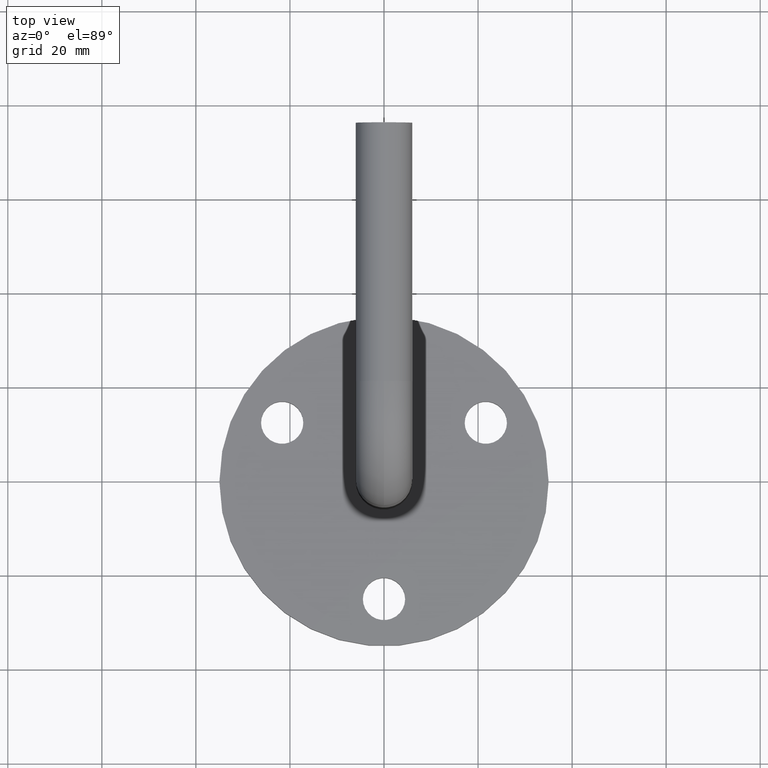
[diagram: clean part render]
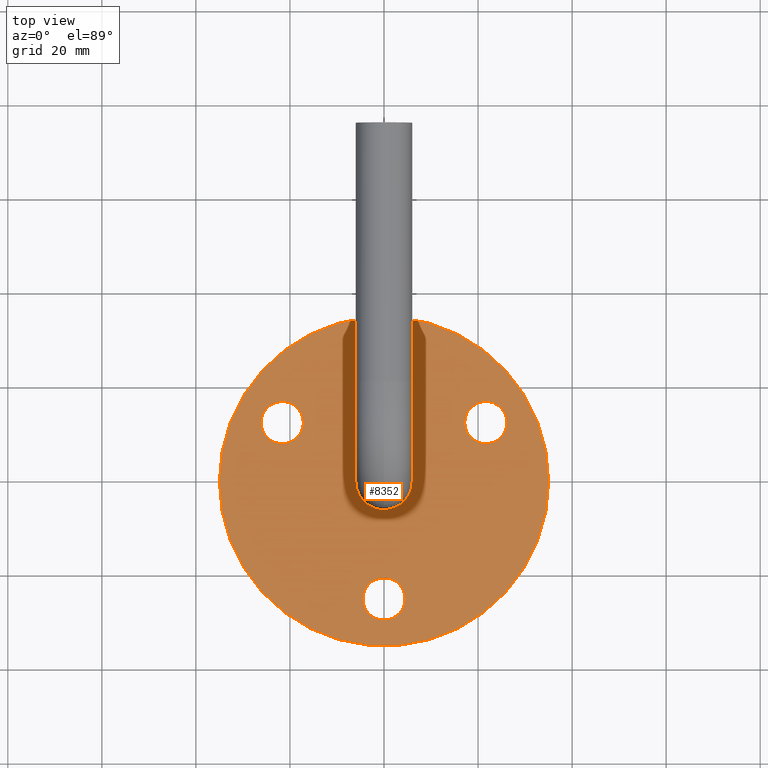
[diagram: same view with one face highlighted and labeled with its STEP entity id]
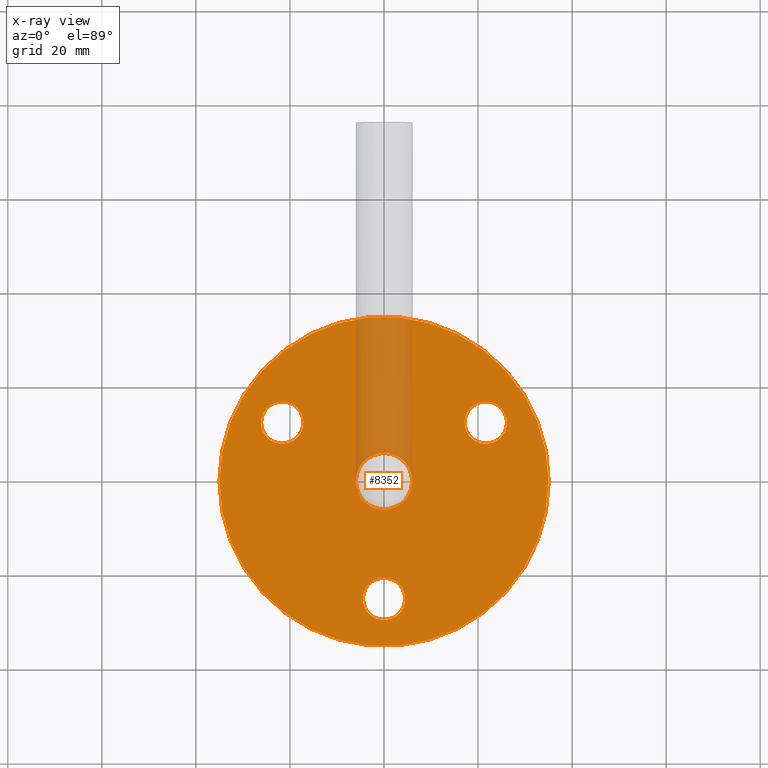
[diagram: x-ray of the same camera — body ghosted, the highlighted face saturated]
A machine part, top view. The second image highlights one B-rep face of the part: STEP entity #8352.
The next image is the same camera in x-ray: the body ghosted, the highlighted face saturated — about 10% of this face is hidden behind the body in this view.
In plain terms, the highlighted planar face has unit normal (0, 0, 1).
Its self-contained STEP definition (entity closure, byte-faithful):
#88 = EDGE_LOOP ( 'NONE', ( #3442, #11648 ) ) ;
#174 = FACE_BOUND ( 'NONE', #1625, .T. ) ;
#561 = VERTEX_POINT ( 'NONE', #13096 ) ;
#562 = CIRCLE ( 'NONE', #12947, 4.500000000000000000 ) ;
#893 = CARTESIAN_POINT ( 'NONE',  ( 4.500000000000000000, -25.00000000000000000, 6.000000000000000000 ) ) ;
#899 = DIRECTION ( 'NONE',  ( -1.000000000000000000, 0.0000000000000000000, 0.0000000000000000000 ) ) ;
#950 = CARTESIAN_POINT ( 'NONE',  ( 26.15063509461100100, 12.49999999999994100, 6.000000000000000000 ) ) ;
#965 = AXIS2_PLACEMENT_3D ( 'NONE', #14089, #1902, #11778 ) ;
#1625 = EDGE_LOOP ( 'NONE', ( #9047, #9250 ) ) ;
#1630 = CIRCLE ( 'NONE', #2992, 4.500000000000000900 ) ;
#1902 = DIRECTION ( 'NONE',  ( 0.0000000000000000000, 0.0000000000000000000, 1.000000000000000000 ) ) ;
#2992 = AXIS2_PLACEMENT_3D ( 'NONE', #11120, #6449, #3846 ) ;
#3137 = ORIENTED_EDGE ( 'NONE', *, *, #4519, .F. ) ;
#3162 = EDGE_LOOP ( 'NONE', ( #12983, #6837 ) ) ;
#3381 = CARTESIAN_POINT ( 'NONE',  ( 21.65063509461100100, 12.49999999999994100, 6.000000000000000000 ) ) ;
#3399 = EDGE_LOOP ( 'NONE', ( #3137, #8518 ) ) ;
#3442 = ORIENTED_EDGE ( 'NONE', *, *, #5758, .T. ) ;
#3619 = VERTEX_POINT ( 'NONE', #9438 ) ;
#3675 = CIRCLE ( 'NONE', #12755, 4.500000000000000900 ) ;
#3846 = DIRECTION ( 'NONE',  ( -1.000000000000000000, 0.0000000000000000000, 0.0000000000000000000 ) ) ;
#3872 = AXIS2_PLACEMENT_3D ( 'NONE', #7206, #15756, #4825 ) ;
#4114 = CARTESIAN_POINT ( 'NONE',  ( 0.0000000000000000000, 0.0000000000000000000, 6.000000000000000000 ) ) ;
#4146 = DIRECTION ( 'NONE',  ( 0.0000000000000000000, 0.0000000000000000000, 1.000000000000000000 ) ) ;
#4397 = VERTEX_POINT ( 'NONE', #893 ) ;
#4400 = DIRECTION ( 'NONE',  ( -1.000000000000000000, 0.0000000000000000000, 0.0000000000000000000 ) ) ;
#4519 = EDGE_CURVE ( 'NONE', #15214, #7427, #1630, .T. ) ;
#4705 = CARTESIAN_POINT ( 'NONE',  ( -26.15063509461099400, 12.49999999999995200, 6.000000000000000000 ) ) ;
#4825 = DIRECTION ( 'NONE',  ( 1.000000000000000000, 0.0000000000000000000, -0.0000000000000000000 ) ) ;
#4978 = CARTESIAN_POINT ( 'NONE',  ( -17.15063509461099400, 12.49999999999995200, 6.000000000000000000 ) ) ;
#5037 = CARTESIAN_POINT ( 'NONE',  ( 0.0000000000000000000, -25.00000000000000000, 6.000000000000000000 ) ) ;
#5165 = VERTEX_POINT ( 'NONE', #14498 ) ;
#5301 = DIRECTION ( 'NONE',  ( 1.000000000000000000, 0.0000000000000000000, 0.0000000000000000000 ) ) ;
#5389 = DIRECTION ( 'NONE',  ( 1.000000000000000000, 0.0000000000000000000, 0.0000000000000000000 ) ) ;
#5758 = EDGE_CURVE ( 'NONE', #9164, #5165, #7307, .T. ) ;
#5821 = AXIS2_PLACEMENT_3D ( 'NONE', #12710, #4146, #5389 ) ;
#6449 = DIRECTION ( 'NONE',  ( 0.0000000000000000000, 0.0000000000000000000, 1.000000000000000000 ) ) ;
#6516 = AXIS2_PLACEMENT_3D ( 'NONE', #15480, #15325, #11725 ) ;
#6671 = CARTESIAN_POINT ( 'NONE',  ( 0.0000000000000000000, -25.00000000000000000, 6.000000000000000000 ) ) ;
#6837 = ORIENTED_EDGE ( 'NONE', *, *, #9498, .F. ) ;
#7036 = AXIS2_PLACEMENT_3D ( 'NONE', #5037, #12367, #11246 ) ;
#7206 = CARTESIAN_POINT ( 'NONE',  ( 0.0000000000000000000, 0.0000000000000000000, 6.000000000000000000 ) ) ;
#7273 = DIRECTION ( 'NONE',  ( 0.0000000000000000000, 0.0000000000000000000, 1.000000000000000000 ) ) ;
#7307 = CIRCLE ( 'NONE', #6516, 35.00000000000000700 ) ;
#7340 = AXIS2_PLACEMENT_3D ( 'NONE', #11781, #14040, #4400 ) ;
#7427 = VERTEX_POINT ( 'NONE', #4978 ) ;
#7550 = EDGE_CURVE ( 'NONE', #13665, #4397, #562, .T. ) ;
#7756 = ORIENTED_EDGE ( 'NONE', *, *, #15759, .F. ) ;
#7871 = EDGE_CURVE ( 'NONE', #3619, #13806, #7945, .T. ) ;
#7945 = CIRCLE ( 'NONE', #15628, 6.000000000000000900 ) ;
#8117 = FACE_OUTER_BOUND ( 'NONE', #88, .T. ) ;
#8352 = ADVANCED_FACE ( 'NONE', ( #8492, #8692, #8117, #13673, #174 ), #12102, .T. ) ;
#8468 = EDGE_LOOP ( 'NONE', ( #7756, #12570 ) ) ;
#8492 = FACE_BOUND ( 'NONE', #8468, .T. ) ;
#8518 = ORIENTED_EDGE ( 'NONE', *, *, #13680, .F. ) ;
#8692 = FACE_BOUND ( 'NONE', #3399, .T. ) ;
#9047 = ORIENTED_EDGE ( 'NONE', *, *, #10628, .F. ) ;
#9164 = VERTEX_POINT ( 'NONE', #14061 ) ;
#9250 = ORIENTED_EDGE ( 'NONE', *, *, #11852, .F. ) ;
#9438 = CARTESIAN_POINT ( 'NONE',  ( 6.000000000000000900, 7.347880794884120700E-016, 5.999999999999998200 ) ) ;
#9498 = EDGE_CURVE ( 'NONE', #4397, #13665, #15352, .T. ) ;
#9900 = CIRCLE ( 'NONE', #14531, 35.00000000000000700 ) ;
#9946 = CIRCLE ( 'NONE', #7340, 4.500000000000000900 ) ;
#10628 = EDGE_CURVE ( 'NONE', #561, #12815, #9946, .T. ) ;
#10773 = CARTESIAN_POINT ( 'NONE',  ( -6.000000000000000900, 0.0000000000000000000, 5.999999999999998200 ) ) ;
#11120 = CARTESIAN_POINT ( 'NONE',  ( -21.65063509461099400, 12.49999999999995200, 6.000000000000000000 ) ) ;
#11246 = DIRECTION ( 'NONE',  ( -1.000000000000000000, 0.0000000000000000000, 0.0000000000000000000 ) ) ;
#11648 = ORIENTED_EDGE ( 'NONE', *, *, #14015, .T. ) ;
#11665 = DIRECTION ( 'NONE',  ( -1.000000000000000000, 0.0000000000000000000, 0.0000000000000000000 ) ) ;
#11725 = DIRECTION ( 'NONE',  ( 1.000000000000000000, 0.0000000000000000000, 0.0000000000000000000 ) ) ;
#11778 = DIRECTION ( 'NONE',  ( -1.000000000000000000, 0.0000000000000000000, 0.0000000000000000000 ) ) ;
#11781 = CARTESIAN_POINT ( 'NONE',  ( 21.65063509461100100, 12.49999999999994100, 6.000000000000000000 ) ) ;
#11852 = EDGE_CURVE ( 'NONE', #12815, #561, #3675, .T. ) ;
#12096 = CIRCLE ( 'NONE', #5821, 6.000000000000000900 ) ;
#12102 = PLANE ( 'NONE',  #3872 ) ;
#12171 = CARTESIAN_POINT ( 'NONE',  ( 0.0000000000000000000, 0.0000000000000000000, 5.999999999999998200 ) ) ;
#12367 = DIRECTION ( 'NONE',  ( 0.0000000000000000000, 0.0000000000000000000, 1.000000000000000000 ) ) ;
#12570 = ORIENTED_EDGE ( 'NONE', *, *, #7871, .F. ) ;
#12670 = DIRECTION ( 'NONE',  ( 0.0000000000000000000, 0.0000000000000000000, 1.000000000000000000 ) ) ;
#12710 = CARTESIAN_POINT ( 'NONE',  ( 0.0000000000000000000, 0.0000000000000000000, 5.999999999999998200 ) ) ;
#12755 = AXIS2_PLACEMENT_3D ( 'NONE', #3381, #14410, #899 ) ;
#12815 = VERTEX_POINT ( 'NONE', #950 ) ;
#12947 = AXIS2_PLACEMENT_3D ( 'NONE', #6671, #15212, #11665 ) ;
#12983 = ORIENTED_EDGE ( 'NONE', *, *, #7550, .F. ) ;
#13096 = CARTESIAN_POINT ( 'NONE',  ( 17.15063509461100100, 12.49999999999994100, 6.000000000000000000 ) ) ;
#13665 = VERTEX_POINT ( 'NONE', #15167 ) ;
#13673 = FACE_BOUND ( 'NONE', #3162, .T. ) ;
#13680 = EDGE_CURVE ( 'NONE', #7427, #15214, #15291, .T. ) ;
#13806 = VERTEX_POINT ( 'NONE', #10773 ) ;
#14015 = EDGE_CURVE ( 'NONE', #5165, #9164, #9900, .T. ) ;
#14040 = DIRECTION ( 'NONE',  ( 0.0000000000000000000, 0.0000000000000000000, 1.000000000000000000 ) ) ;
#14061 = CARTESIAN_POINT ( 'NONE',  ( -35.00000000000000700, 0.0000000000000000000, 6.000000000000000000 ) ) ;
#14089 = CARTESIAN_POINT ( 'NONE',  ( -21.65063509461099400, 12.49999999999995200, 6.000000000000000000 ) ) ;
#14410 = DIRECTION ( 'NONE',  ( 0.0000000000000000000, 0.0000000000000000000, 1.000000000000000000 ) ) ;
#14498 = CARTESIAN_POINT ( 'NONE',  ( 35.00000000000000700, 4.286263797015737300E-015, 6.000000000000000000 ) ) ;
#14531 = AXIS2_PLACEMENT_3D ( 'NONE', #4114, #12670, #5301 ) ;
#14748 = DIRECTION ( 'NONE',  ( 1.000000000000000000, 0.0000000000000000000, 0.0000000000000000000 ) ) ;
#15167 = CARTESIAN_POINT ( 'NONE',  ( -4.500000000000000000, -25.00000000000000000, 6.000000000000000000 ) ) ;
#15212 = DIRECTION ( 'NONE',  ( 0.0000000000000000000, 0.0000000000000000000, 1.000000000000000000 ) ) ;
#15214 = VERTEX_POINT ( 'NONE', #4705 ) ;
#15291 = CIRCLE ( 'NONE', #965, 4.500000000000000900 ) ;
#15325 = DIRECTION ( 'NONE',  ( 0.0000000000000000000, 0.0000000000000000000, 1.000000000000000000 ) ) ;
#15352 = CIRCLE ( 'NONE', #7036, 4.500000000000000000 ) ;
#15480 = CARTESIAN_POINT ( 'NONE',  ( 0.0000000000000000000, 0.0000000000000000000, 6.000000000000000000 ) ) ;
#15628 = AXIS2_PLACEMENT_3D ( 'NONE', #12171, #7273, #14748 ) ;
#15756 = DIRECTION ( 'NONE',  ( 0.0000000000000000000, 0.0000000000000000000, 1.000000000000000000 ) ) ;
#15759 = EDGE_CURVE ( 'NONE', #13806, #3619, #12096, .T. ) ;